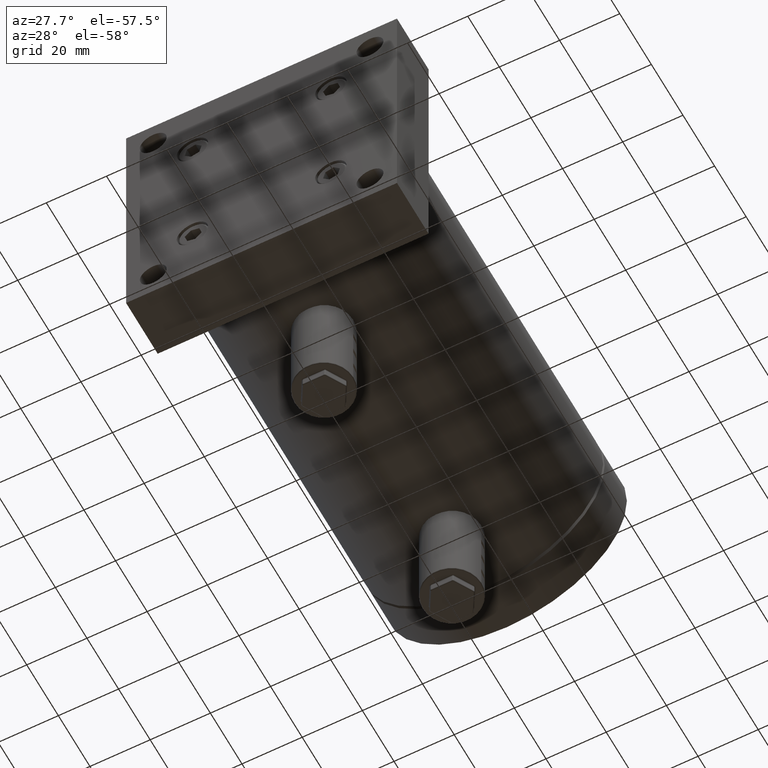
[diagram: clean part render]
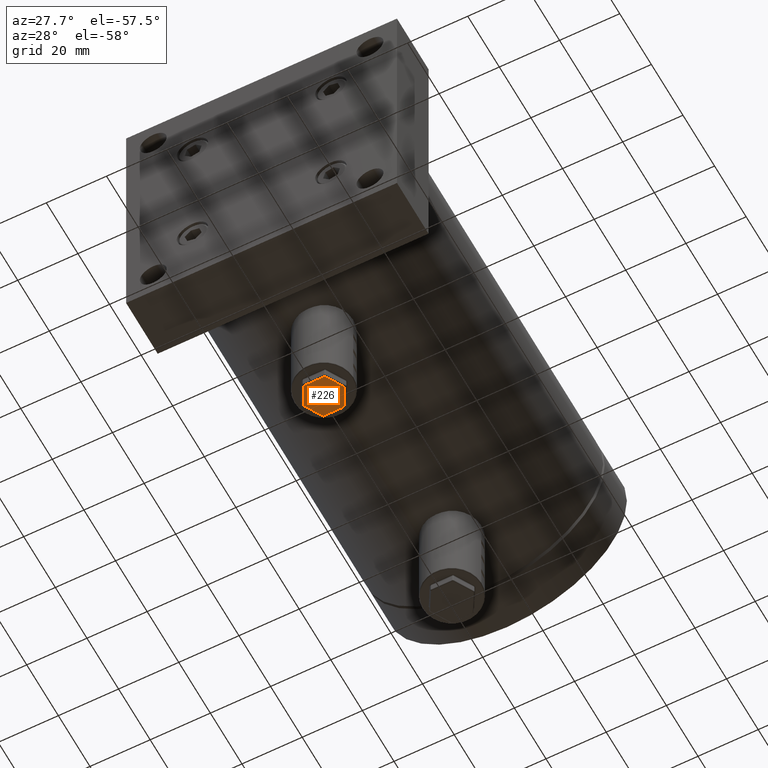
[diagram: same view with one face highlighted and labeled with its STEP entity id]
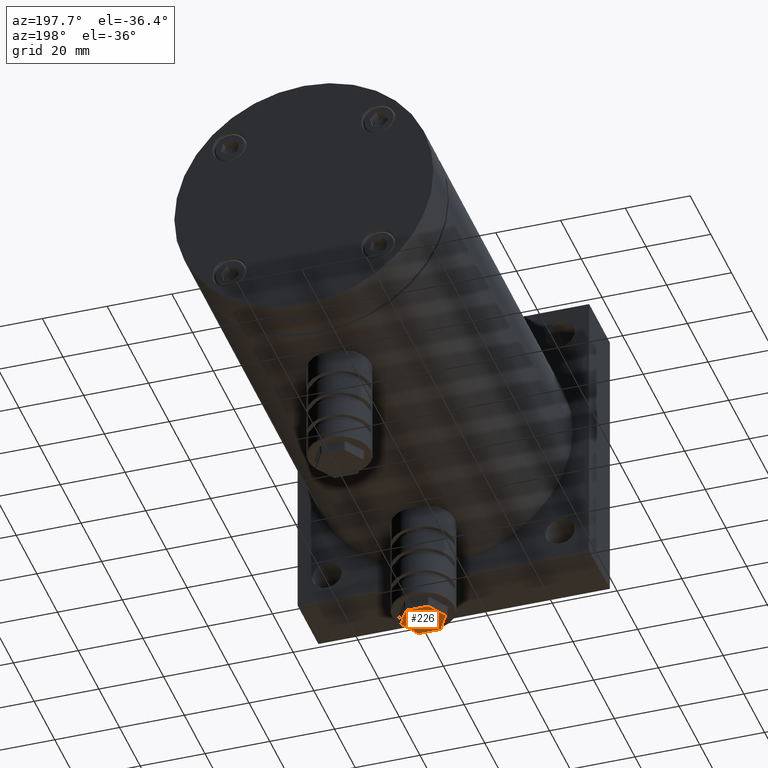
[diagram: same view with one face highlighted and labeled with its STEP entity id]
A machine part, auxiliary view. The second image highlights one B-rep face of the part: STEP entity #226.
A second angle (auxiliary view) of the same face is appended — the face is thin or edge-on in the first view.
In plain terms, the highlighted planar face has unit normal (0, 0, 1).
Its self-contained STEP definition (entity closure, byte-faithful):
#226 = ADVANCED_FACE ( 'NONE', ( #28746 ), #17458, .F. ) ;
#1003 = EDGE_CURVE ( 'NONE', #13417, #17719, #1133, .T. ) ;
#1133 = LINE ( 'NONE', #19427, #19371 ) ;
#2187 = VECTOR ( 'NONE', #25095, 1000.000000000000000 ) ;
#5293 = EDGE_CURVE ( 'NONE', #14720, #17398, #31623, .T. ) ;
#6979 = CARTESIAN_POINT ( 'NONE',  ( 7.072540797572910000, 39.25000000000000000, -74.00000000000000000 ) ) ;
#7181 = CARTESIAN_POINT ( 'NONE',  ( 6.928203230275509700, 39.50000000000000000, -74.00000000000000000 ) ) ;
#7469 = DIRECTION ( 'NONE',  ( -0.4999999999999998900, 0.8660254037844387100, 0.0000000000000000000 ) ) ;
#9318 = VERTEX_POINT ( 'NONE', #9553 ) ;
#9553 = CARTESIAN_POINT ( 'NONE',  ( -6.928203230275509700, 39.50000000000000000, -74.00000000000000000 ) ) ;
#10043 = CARTESIAN_POINT ( 'NONE',  ( -3.464101615137754800, 45.50000000000000000, -74.00000000000000000 ) ) ;
#10110 = DIRECTION ( 'NONE',  ( 0.0000000000000000000, 0.0000000000000000000, 1.000000000000000000 ) ) ;
#10652 = EDGE_CURVE ( 'NONE', #17719, #9318, #32888, .T. ) ;
#10833 = DIRECTION ( 'NONE',  ( 1.000000000000000000, -2.311253228826400100E-016, 0.0000000000000000000 ) ) ;
#11381 = EDGE_LOOP ( 'NONE', ( #13044, #20186, #12300, #14180, #18292, #23415 ) ) ;
#12300 = ORIENTED_EDGE ( 'NONE', *, *, #10652, .T. ) ;
#12469 = CARTESIAN_POINT ( 'NONE',  ( -3.752776749732575000, 33.00000000000000000, -74.00000000000000000 ) ) ;
#13044 = ORIENTED_EDGE ( 'NONE', *, *, #14510, .T. ) ;
#13417 = VERTEX_POINT ( 'NONE', #18387 ) ;
#14180 = ORIENTED_EDGE ( 'NONE', *, *, #17336, .T. ) ;
#14510 = EDGE_CURVE ( 'NONE', #15540, #13417, #19283, .T. ) ;
#14720 = VERTEX_POINT ( 'NONE', #10043 ) ;
#15178 = LINE ( 'NONE', #6979, #31335 ) ;
#15540 = VERTEX_POINT ( 'NONE', #7181 ) ;
#15944 = CARTESIAN_POINT ( 'NONE',  ( 1.443375672974059900, 30.00000000000000000, -74.00000000000000000 ) ) ;
#17336 = EDGE_CURVE ( 'NONE', #9318, #14720, #29277, .T. ) ;
#17398 = VERTEX_POINT ( 'NONE', #22263 ) ;
#17458 = PLANE ( 'NONE',  #19018 ) ;
#17519 = VECTOR ( 'NONE', #7469, 1000.000000000000000 ) ;
#17523 = CARTESIAN_POINT ( 'NONE',  ( -3.464101615137760200, 33.50000000000000000, -74.00000000000000000 ) ) ;
#17550 = CARTESIAN_POINT ( 'NONE',  ( -8.948929172439200400, 36.00000000000000000, -74.00000000000000000 ) ) ;
#17719 = VERTEX_POINT ( 'NONE', #17523 ) ;
#18292 = ORIENTED_EDGE ( 'NONE', *, *, #5293, .T. ) ;
#18387 = CARTESIAN_POINT ( 'NONE',  ( 3.464101615137749900, 33.50000000000000000, -74.00000000000000000 ) ) ;
#19018 = AXIS2_PLACEMENT_3D ( 'NONE', #12469, #10110, #30575 ) ;
#19283 = LINE ( 'NONE', #15944, #33479 ) ;
#19371 = VECTOR ( 'NONE', #19533, 1000.000000000000000 ) ;
#19427 = CARTESIAN_POINT ( 'NONE',  ( -3.752776749732575000, 33.50000000000000000, -74.00000000000000000 ) ) ;
#19533 = DIRECTION ( 'NONE',  ( -1.000000000000000000, -1.155626614413199800E-016, 0.0000000000000000000 ) ) ;
#20186 = ORIENTED_EDGE ( 'NONE', *, *, #1003, .T. ) ;
#22263 = CARTESIAN_POINT ( 'NONE',  ( 3.464101615137749900, 45.50000000000000000, -74.00000000000000000 ) ) ;
#23013 = EDGE_CURVE ( 'NONE', #17398, #15540, #15178, .T. ) ;
#23415 = ORIENTED_EDGE ( 'NONE', *, *, #23013, .T. ) ;
#23809 = DIRECTION ( 'NONE',  ( -0.4999999999999998900, -0.8660254037844387100, 0.0000000000000000000 ) ) ;
#25095 = DIRECTION ( 'NONE',  ( 0.4999999999999998900, 0.8660254037844387100, 0.0000000000000000000 ) ) ;
#26078 = CARTESIAN_POINT ( 'NONE',  ( -3.752776749732569700, 45.50000000000000000, -74.00000000000000000 ) ) ;
#27658 = DIRECTION ( 'NONE',  ( 0.4999999999999998900, -0.8660254037844387100, 0.0000000000000000000 ) ) ;
#28022 = CARTESIAN_POINT ( 'NONE',  ( -3.319764047840354900, 33.25000000000000000, -74.00000000000000000 ) ) ;
#28746 = FACE_OUTER_BOUND ( 'NONE', #11381, .T. ) ;
#29277 = LINE ( 'NONE', #17550, #2187 ) ;
#30575 = DIRECTION ( 'NONE',  ( 1.000000000000000000, 0.0000000000000000000, 0.0000000000000000000 ) ) ;
#30828 = VECTOR ( 'NONE', #10833, 1000.000000000000000 ) ;
#31335 = VECTOR ( 'NONE', #27658, 1000.000000000000000 ) ;
#31623 = LINE ( 'NONE', #26078, #30828 ) ;
#32888 = LINE ( 'NONE', #28022, #17519 ) ;
#33479 = VECTOR ( 'NONE', #23809, 1000.000000000000000 ) ;